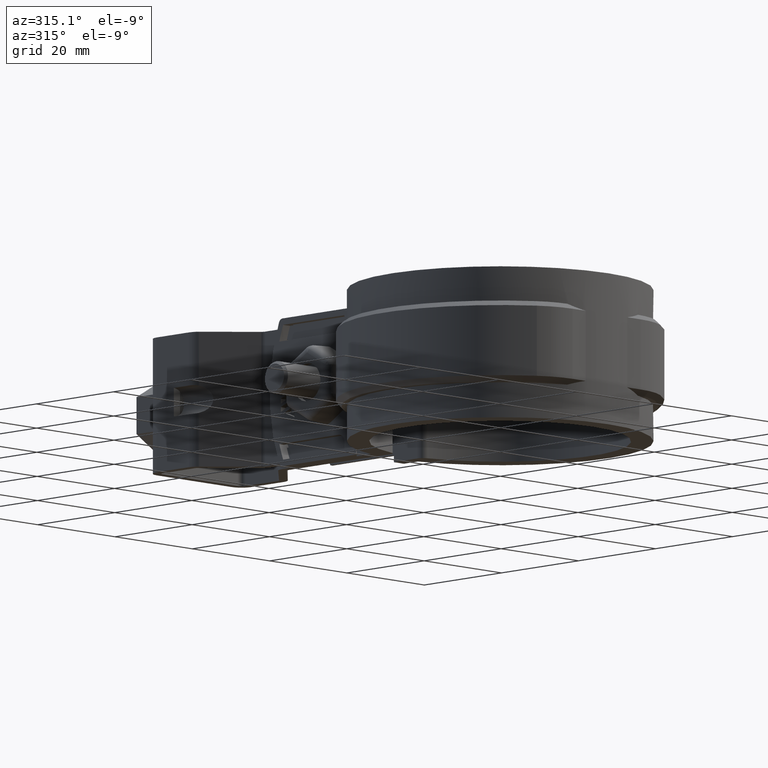
[diagram: clean part render]
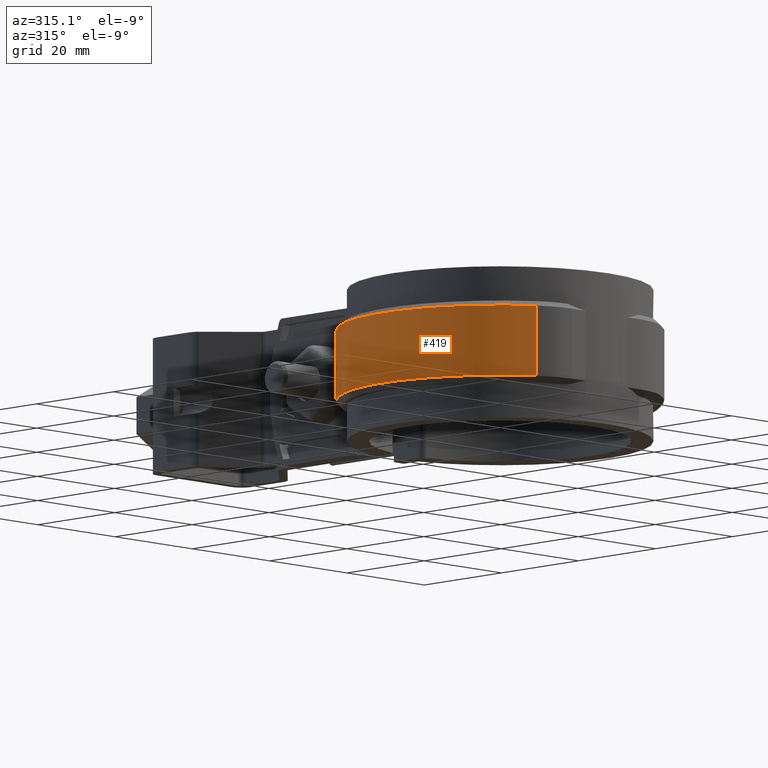
[diagram: same view with one face highlighted and labeled with its STEP entity id]
A machine part, auxiliary view. The second image highlights one B-rep face of the part: STEP entity #419.
In plain terms, the highlighted cylindrical surface (partial cylindrical patch) has radius 30.095 mm, axis along (0, 0, 1).
Its self-contained STEP definition (entity closure, byte-faithful):
#419 = ADVANCED_FACE( '', ( #829 ), #830, .T. );
#829 = FACE_OUTER_BOUND( '', #1870, .T. );
#830 = CYLINDRICAL_SURFACE( '', #1871, 30.0950000000000 );
#1870 = EDGE_LOOP( '', ( #4047, #4048, #4049, #4050 ) );
#1871 = AXIS2_PLACEMENT_3D( '', #4051, #4052, #4053 );
#4047 = ORIENTED_EDGE( '', *, *, #7310, .F. );
#4048 = ORIENTED_EDGE( '', *, *, #7311, .T. );
#4049 = ORIENTED_EDGE( '', *, *, #7312, .T. );
#4050 = ORIENTED_EDGE( '', *, *, #7307, .T. );
#4051 = CARTESIAN_POINT( '', ( 8.67361737988404E-016, 0.000000000000000, -20.0000000000000 ) );
#4052 = DIRECTION( '', ( 0.000000000000000, 0.000000000000000, 1.00000000000000 ) );
#4053 = DIRECTION( '', ( 0.190592010331802, 0.981669336180815, 0.000000000000000 ) );
#7307 = EDGE_CURVE( '', #8392, #8389, #8393, .T. );
#7310 = EDGE_CURVE( '', #8397, #8389, #8398, .F. );
#7311 = EDGE_CURVE( '', #8397, #8399, #8400, .T. );
#7312 = EDGE_CURVE( '', #8399, #8392, #8401, .T. );
#8389 = VERTEX_POINT( '', #10873 );
#8392 = VERTEX_POINT( '', #10879 );
#8393 = CIRCLE( '', #10880, 30.0950000000000 );
#8397 = VERTEX_POINT( '', #10885 );
#8398 = LINE( '', #10886, #10887 );
#8399 = VERTEX_POINT( '', #10888 );
#8400 = CIRCLE( '', #10889, 30.0950000000000 );
#8401 = LINE( '', #10890, #10891 );
#10873 = CARTESIAN_POINT( '', ( -6.09999999999999, 29.4703075145137, -6.00000000000000 ) );
#10879 = CARTESIAN_POINT( '', ( -15.9728671526465, -25.5064019399818, -6.00000000000000 ) );
#10880 = AXIS2_PLACEMENT_3D( '', #13815, #13816, #13817 );
#10885 = CARTESIAN_POINT( '', ( -6.09999999999999, 29.4703075145137, -19.0000000000000 ) );
#10886 = CARTESIAN_POINT( '', ( -6.09999999999999, 29.4703075145137, -20.0000000000000 ) );
#10887 = VECTOR( '', #13822, 1000.00000000000 );
#10888 = CARTESIAN_POINT( '', ( -15.9728671526465, -25.5064019399818, -19.0000000000000 ) );
#10889 = AXIS2_PLACEMENT_3D( '', #13823, #13824, #13825 );
#10890 = CARTESIAN_POINT( '', ( -15.9728671526465, -25.5064019399818, -20.0000000000000 ) );
#10891 = VECTOR( '', #13826, 1000.00000000000 );
#13815 = CARTESIAN_POINT( '', ( 8.67361737988404E-016, 0.000000000000000, -6.00000000000000 ) );
#13816 = DIRECTION( '', ( 0.000000000000000, 0.000000000000000, -1.00000000000000 ) );
#13817 = DIRECTION( '', ( -1.00000000000000, 0.000000000000000, 0.000000000000000 ) );
#13822 = DIRECTION( '', ( 0.000000000000000, 0.000000000000000, -1.00000000000000 ) );
#13823 = CARTESIAN_POINT( '', ( 8.67361737988404E-016, 0.000000000000000, -19.0000000000000 ) );
#13824 = DIRECTION( '', ( 0.000000000000000, 0.000000000000000, 1.00000000000000 ) );
#13825 = DIRECTION( '', ( 1.00000000000000, 0.000000000000000, 0.000000000000000 ) );
#13826 = DIRECTION( '', ( 0.000000000000000, 0.000000000000000, 1.00000000000000 ) );